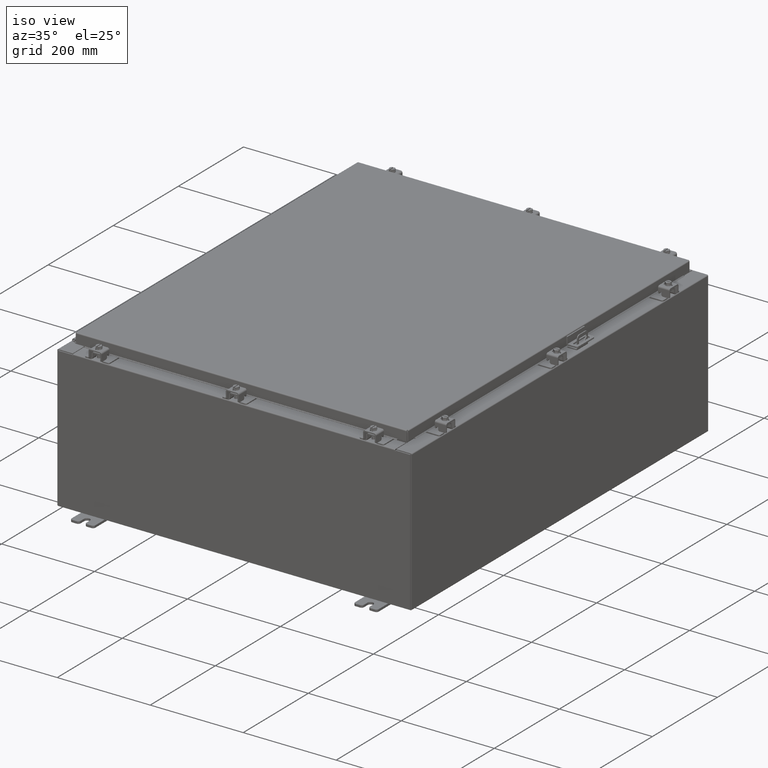
[diagram: clean part render]
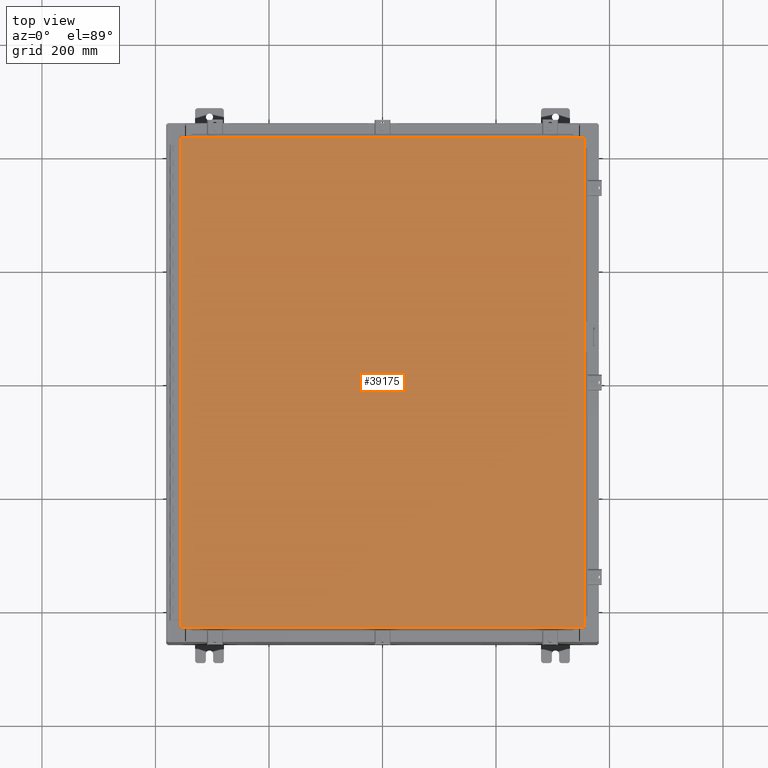
[diagram: tour spotlight — one face highlighted and labeled with its STEP entity id]
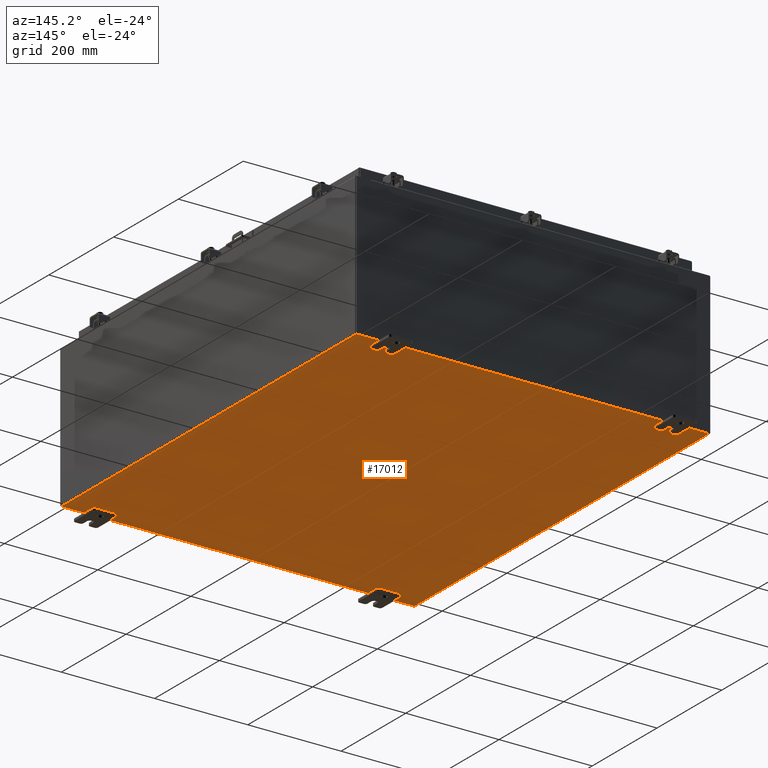
[diagram: tour spotlight — one face highlighted and labeled with its STEP entity id]
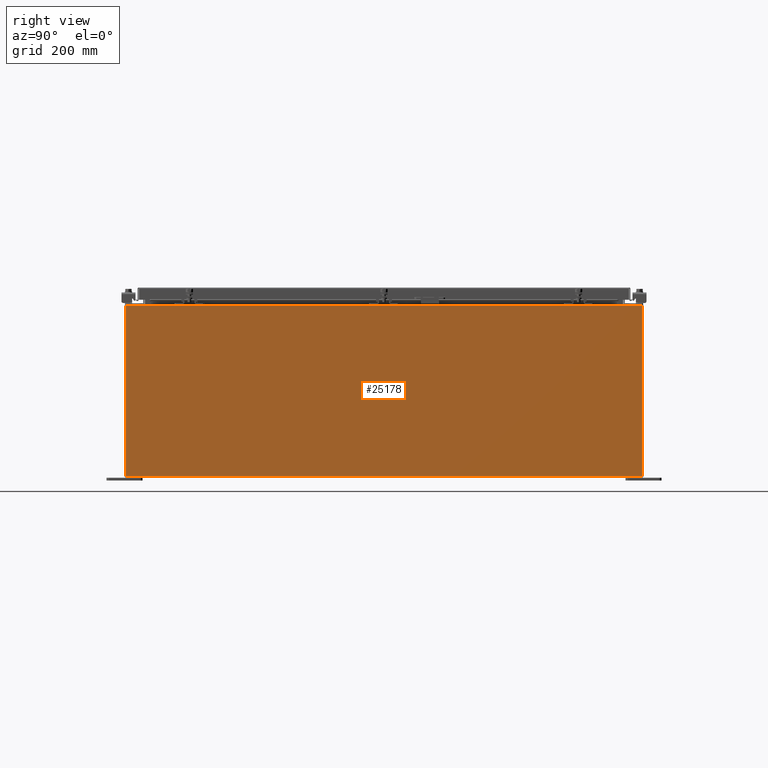
[diagram: tour spotlight — one face highlighted and labeled with its STEP entity id]
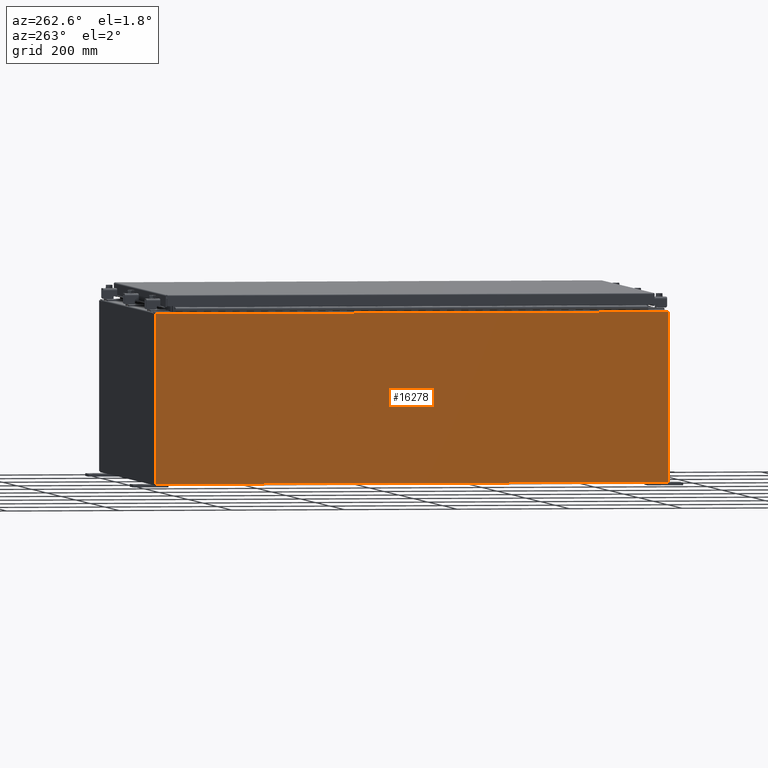
[diagram: tour spotlight — one face highlighted and labeled with its STEP entity id]
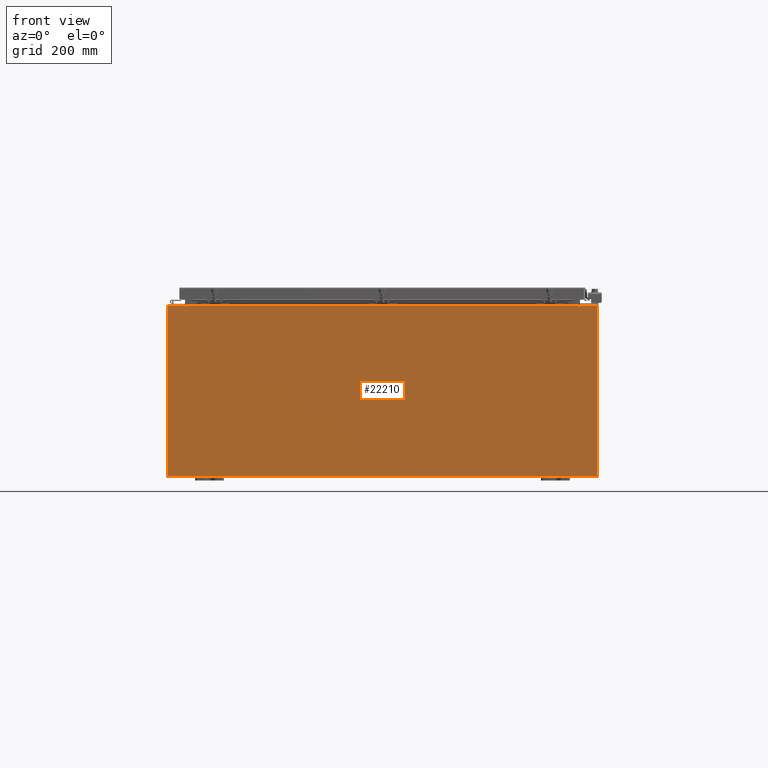
[diagram: tour spotlight — one face highlighted and labeled with its STEP entity id]
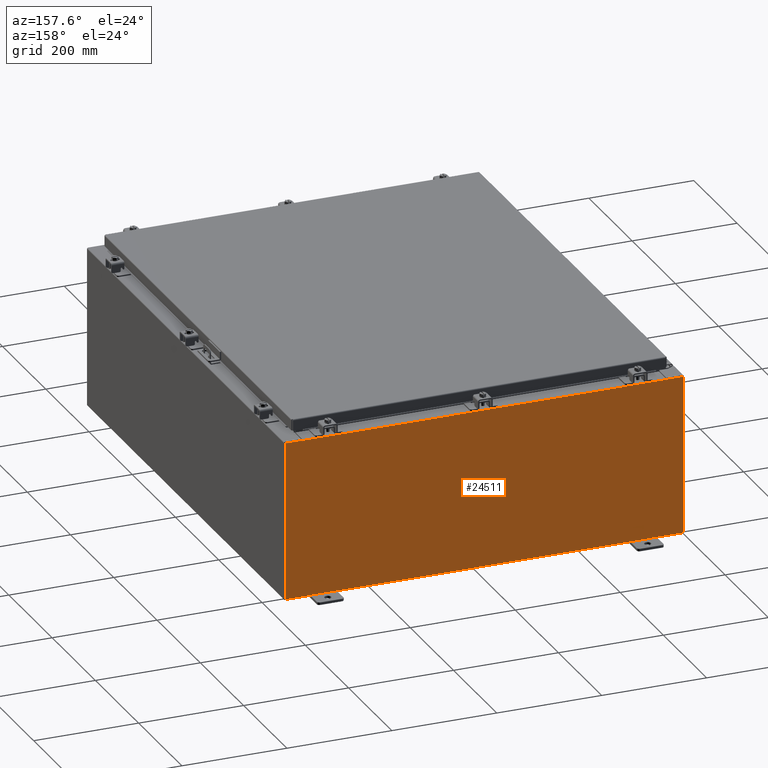
[diagram: tour spotlight — one face highlighted and labeled with its STEP entity id]
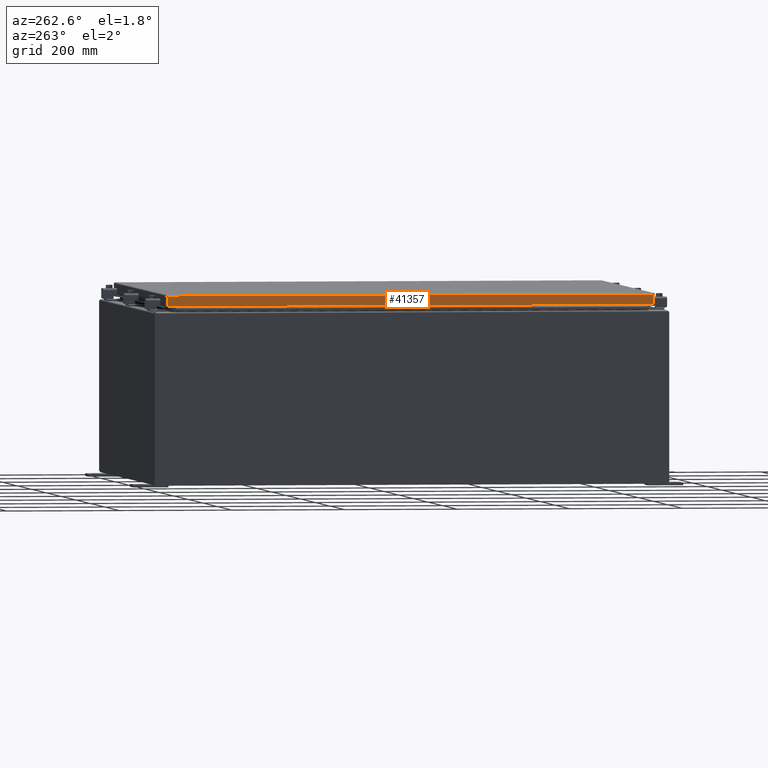
[diagram: tour spotlight — one face highlighted and labeled with its STEP entity id]
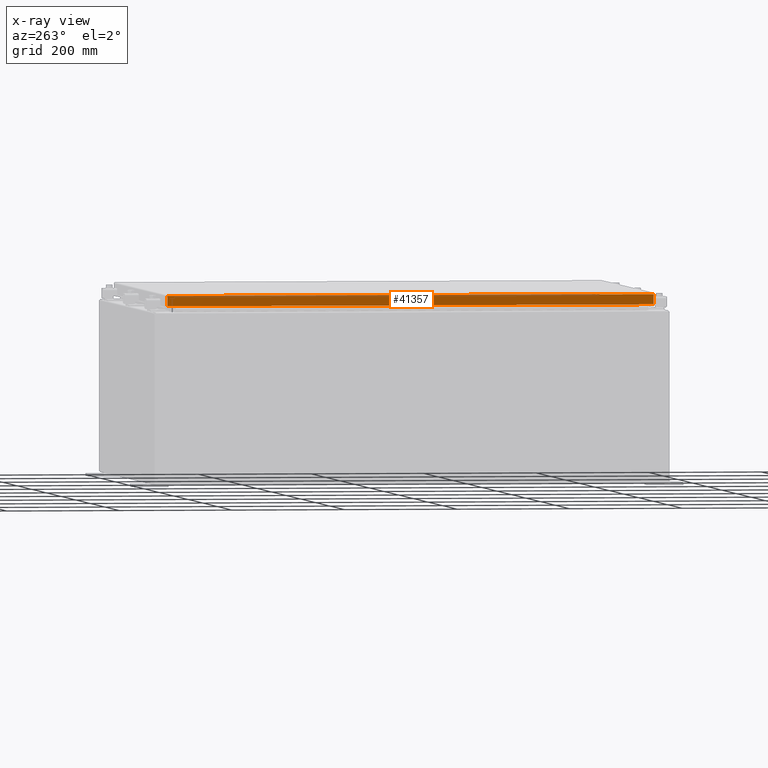
[diagram: x-ray of the same camera — body ghosted, this tour face saturated]
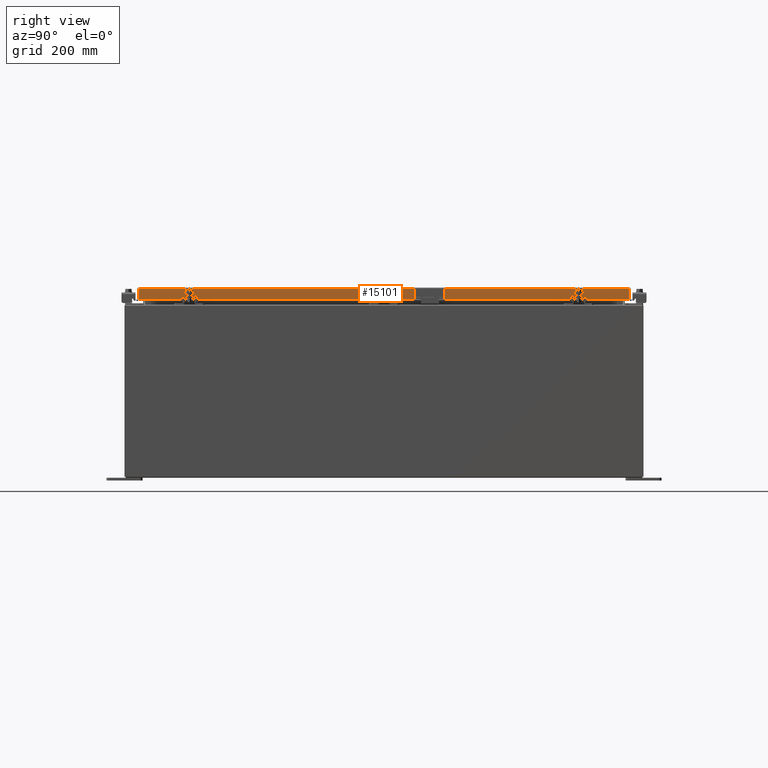
[diagram: tour spotlight — one face highlighted and labeled with its STEP entity id]
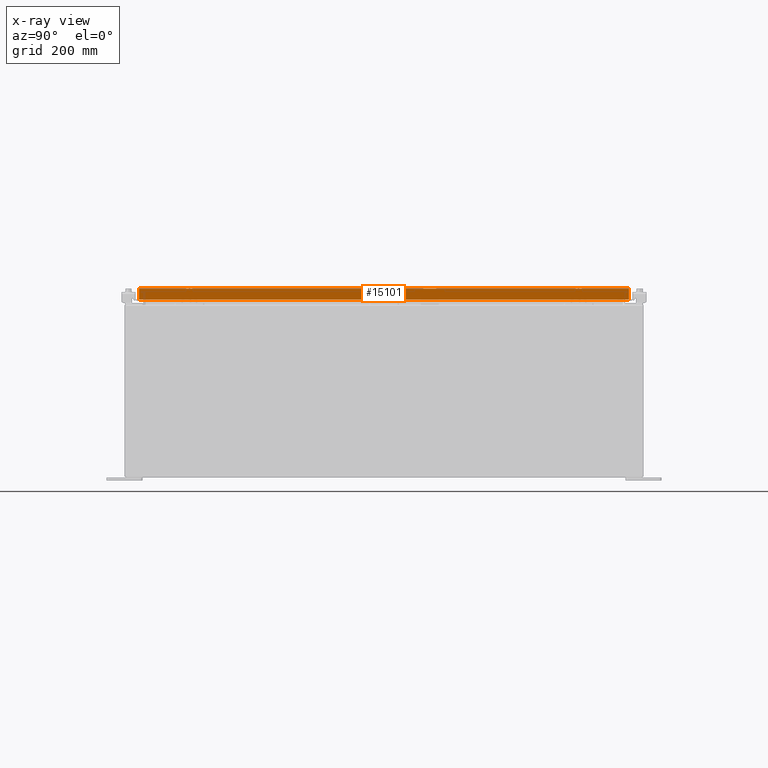
[diagram: x-ray of the same camera — body ghosted, this tour face saturated]
A machine part: a face-by-face anatomy tour. The part has 2456 B-rep faces; the first image is the clean iso view, then the 8 largest visible faces are spotlighted one at a time (largest first), each with its STEP entity span.

Face 1 — top view, entity #39175. In plain terms, the highlighted planar face has unit normal (0, 0, -1).
Definition (entity closure, byte-faithful):
#191 = ORIENTED_EDGE ( 'NONE', *, *, #33619, .T. ) ;
#309 = ORIENTED_EDGE ( 'NONE', *, *, #18779, .T. ) ;
#996 = CARTESIAN_POINT ( 'NONE',  ( 13.99029999999999200, 17.00630000000000300, -1.297627796990525000E-015 ) ) ;
#1661 = EDGE_CURVE ( 'NONE', #9307, #8227, #2307, .T. ) ;
#2194 = DIRECTION ( 'NONE',  ( 0.0000000000000000000, -1.000000000000000000, 0.0000000000000000000 ) ) ;
#2307 = LINE ( 'NONE', #35339, #27829 ) ;
#4117 = CARTESIAN_POINT ( 'NONE',  ( -13.99030000000000700, -17.00630000000000000, -2.048885995248197400E-016 ) ) ;
#5001 = PLANE ( 'NONE',  #30176 ) ;
#5248 = VERTEX_POINT ( 'NONE', #32725 ) ;
#5405 = DIRECTION ( 'NONE',  ( 1.000000000000000000, -0.0000000000000000000, -0.0000000000000000000 ) ) ;
#8227 = VERTEX_POINT ( 'NONE', #20171 ) ;
#9307 = VERTEX_POINT ( 'NONE', #4117 ) ;
#9902 = ORIENTED_EDGE ( 'NONE', *, *, #30207, .T. ) ;
#14158 = CARTESIAN_POINT ( 'NONE',  ( 13.99029999999999200, -17.00630000000000000, -2.048885995248197400E-016 ) ) ;
#15051 = DIRECTION ( 'NONE',  ( 0.0000000000000000000, 0.0000000000000000000, -1.000000000000000000 ) ) ;
#17682 = LINE ( 'NONE', #42198, #25524 ) ;
#18779 = EDGE_CURVE ( 'NONE', #18834, #5248, #24235, .T. ) ;
#18834 = VERTEX_POINT ( 'NONE', #996 ) ;
#20171 = CARTESIAN_POINT ( 'NONE',  ( 13.99029999999999200, -17.00630000000000000, -2.048885995248197400E-016 ) ) ;
#20791 = EDGE_LOOP ( 'NONE', ( #23400, #9902, #309, #191 ) ) ;
#22621 = FACE_OUTER_BOUND ( 'NONE', #20791, .T. ) ;
#23400 = ORIENTED_EDGE ( 'NONE', *, *, #1661, .T. ) ;
#24235 = LINE ( 'NONE', #27099, #40952 ) ;
#25524 = VECTOR ( 'NONE', #2194, 39.37007874015748100 ) ;
#27099 = CARTESIAN_POINT ( 'NONE',  ( 13.99029999999999200, 17.00630000000000300, -1.297627796990525000E-015 ) ) ;
#27829 = VECTOR ( 'NONE', #5405, 39.37007874015748100 ) ;
#30176 = AXIS2_PLACEMENT_3D ( 'NONE', #31694, #15051, #38436 ) ;
#30207 = EDGE_CURVE ( 'NONE', #8227, #18834, #33132, .T. ) ;
#31694 = CARTESIAN_POINT ( 'NONE',  ( 0.0000000000000000000, 0.0000000000000000000, 0.0000000000000000000 ) ) ;
#32725 = CARTESIAN_POINT ( 'NONE',  ( -13.99030000000000700, 17.00630000000000000, -2.048885995248197400E-016 ) ) ;
#33132 = LINE ( 'NONE', #14158, #41016 ) ;
#33619 = EDGE_CURVE ( 'NONE', #5248, #9307, #17682, .T. ) ;
#35339 = CARTESIAN_POINT ( 'NONE',  ( -13.99030000000000700, -17.00630000000000000, -2.048885995248197400E-016 ) ) ;
#38436 = DIRECTION ( 'NONE',  ( -1.000000000000000000, 0.0000000000000000000, -0.0000000000000000000 ) ) ;
#39175 = ADVANCED_FACE ( 'NONE', ( #22621 ), #5001, .F. ) ;
#40140 = DIRECTION ( 'NONE',  ( -1.000000000000000000, -0.0000000000000000000, -0.0000000000000000000 ) ) ;
#40893 = DIRECTION ( 'NONE',  ( 0.0000000000000000000, 1.000000000000000000, 0.0000000000000000000 ) ) ;
#40952 = VECTOR ( 'NONE', #40140, 39.37007874015748100 ) ;
#41016 = VECTOR ( 'NONE', #40893, 39.37007874015748100 ) ;
#42198 = CARTESIAN_POINT ( 'NONE',  ( -13.99030000000000700, 17.00630000000000000, -2.048885995248197400E-016 ) ) ;

Face 2 — auxiliary view, entity #17012. In plain terms, the highlighted planar face has unit normal (0, 0, -1).
Definition (entity closure, byte-faithful):
#539 = LINE ( 'NONE', #2474, #34940 ) ;
#789 = CARTESIAN_POINT ( 'NONE',  ( -14.91230000000000200, -17.92530000000000000, -0.07469999999999994700 ) ) ;
#812 = CARTESIAN_POINT ( 'NONE',  ( -14.91230000000000200, 17.92530000000000000, -0.07470000000000000300 ) ) ;
#1270 = VECTOR ( 'NONE', #16468, 39.37007874015748100 ) ;
#1309 = PLANE ( 'NONE',  #15820 ) ;
#2086 = CARTESIAN_POINT ( 'NONE',  ( 14.91229999999999800, 17.92530000000000000, -0.07470000000000251400 ) ) ;
#2474 = CARTESIAN_POINT ( 'NONE',  ( -15.00000000000000400, 17.92530000000000000, -0.07470000000000000300 ) ) ;
#2771 = ORIENTED_EDGE ( 'NONE', *, *, #39506, .T. ) ;
#3718 = LINE ( 'NONE', #789, #37130 ) ;
#5059 = DIRECTION ( 'NONE',  ( 1.000000000000000000, 0.0000000000000000000, 0.0000000000000000000 ) ) ;
#6262 = ORIENTED_EDGE ( 'NONE', *, *, #21715, .T. ) ;
#10648 = CARTESIAN_POINT ( 'NONE',  ( -14.91230000000000200, -17.92530000000000000, -0.07469999999999994700 ) ) ;
#11982 = VECTOR ( 'NONE', #5059, 39.37007874015748100 ) ;
#15621 = EDGE_CURVE ( 'NONE', #15990, #28274, #539, .T. ) ;
#15704 = ORIENTED_EDGE ( 'NONE', *, *, #33000, .F. ) ;
#15820 = AXIS2_PLACEMENT_3D ( 'NONE', #32614, #40385, #41700 ) ;
#15990 = VERTEX_POINT ( 'NONE', #2086 ) ;
#16468 = DIRECTION ( 'NONE',  ( -0.0000000000000000000, -1.000000000000000000, 8.208677865577646300E-017 ) ) ;
#17012 = ADVANCED_FACE ( 'NONE', ( #21281 ), #1309, .T. ) ;
#20755 = VERTEX_POINT ( 'NONE', #37196 ) ;
#21270 = ORIENTED_EDGE ( 'NONE', *, *, #15621, .F. ) ;
#21281 = FACE_OUTER_BOUND ( 'NONE', #25036, .T. ) ;
#21715 = EDGE_CURVE ( 'NONE', #15990, #20755, #28877, .T. ) ;
#23963 = CARTESIAN_POINT ( 'NONE',  ( 14.91229999999999800, 17.92530000000000000, -0.07470000000000251400 ) ) ;
#25036 = EDGE_LOOP ( 'NONE', ( #15704, #2771, #21270, #6262 ) ) ;
#27423 = DIRECTION ( 'NONE',  ( -0.0000000000000000000, 1.000000000000000000, -0.0000000000000000000 ) ) ;
#27600 = DIRECTION ( 'NONE',  ( -1.000000000000000000, -0.0000000000000000000, -0.0000000000000000000 ) ) ;
#28274 = VERTEX_POINT ( 'NONE', #812 ) ;
#28387 = VERTEX_POINT ( 'NONE', #10648 ) ;
#28877 = LINE ( 'NONE', #23963, #1270 ) ;
#31598 = CARTESIAN_POINT ( 'NONE',  ( -15.00000000000000400, -17.92530000000000000, -0.07470000000000000300 ) ) ;
#32614 = CARTESIAN_POINT ( 'NONE',  ( 0.0000000000000000000, 0.0000000000000000000, -0.07470000000000000300 ) ) ;
#33000 = EDGE_CURVE ( 'NONE', #28387, #20755, #38673, .T. ) ;
#34940 = VECTOR ( 'NONE', #27600, 39.37007874015748100 ) ;
#37130 = VECTOR ( 'NONE', #27423, 39.37007874015748100 ) ;
#37196 = CARTESIAN_POINT ( 'NONE',  ( 14.91229999999999800, -17.92530000000000000, -0.07470000000000000300 ) ) ;
#38673 = LINE ( 'NONE', #31598, #11982 ) ;
#39506 = EDGE_CURVE ( 'NONE', #28387, #28274, #3718, .T. ) ;
#40385 = DIRECTION ( 'NONE',  ( 0.0000000000000000000, 0.0000000000000000000, -1.000000000000000000 ) ) ;
#41700 = DIRECTION ( 'NONE',  ( -1.000000000000000000, 0.0000000000000000000, -0.0000000000000000000 ) ) ;

Face 3 — right view, entity #25178. In plain terms, the highlighted planar face has unit normal (-1, 0, 0).
Definition (entity closure, byte-faithful):
#2097 = DIRECTION ( 'NONE',  ( 3.482016343714355500E-015, -1.832640180902292400E-016, 1.000000000000000000 ) ) ;
#4317 = DIRECTION ( 'NONE',  ( 3.482016343714355100E-015, 0.0000000000000000000, 1.000000000000000000 ) ) ;
#4498 = DIRECTION ( 'NONE',  ( -1.000000000000000000, 0.0000000000000000000, 3.482016343714355100E-015 ) ) ;
#5615 = LINE ( 'NONE', #33750, #39077 ) ;
#5882 = DIRECTION ( 'NONE',  ( 2.122662239958547800E-031, -1.000000000000000000, 6.096072018129156600E-017 ) ) ;
#7969 = CARTESIAN_POINT ( 'NONE',  ( 15.00000000000004100, 17.92530000000000000, 11.83760000000000000 ) ) ;
#8569 = EDGE_CURVE ( 'NONE', #34806, #18717, #5615, .T. ) ;
#9868 = VECTOR ( 'NONE', #11328, 39.37007874015748100 ) ;
#9876 = LINE ( 'NONE', #42080, #28676 ) ;
#10650 = VECTOR ( 'NONE', #5882, 39.37007874015748100 ) ;
#11328 = DIRECTION ( 'NONE',  ( -0.0000000000000000000, -1.000000000000000000, -0.0000000000000000000 ) ) ;
#13254 = VERTEX_POINT ( 'NONE', #21240 ) ;
#13809 = CARTESIAN_POINT ( 'NONE',  ( 14.99999999999999800, -17.92530000000000000, 0.01299999999999984700 ) ) ;
#14665 = EDGE_CURVE ( 'NONE', #22363, #13254, #9876, .T. ) ;
#14951 = PLANE ( 'NONE',  #26482 ) ;
#15037 = CARTESIAN_POINT ( 'NONE',  ( 15.00000000000004100, -17.92530000000000000, 11.83760000000000000 ) ) ;
#17853 = ORIENTED_EDGE ( 'NONE', *, *, #40330, .T. ) ;
#18717 = VERTEX_POINT ( 'NONE', #41968 ) ;
#21240 = CARTESIAN_POINT ( 'NONE',  ( 15.00000000000004100, 17.92530000000000000, 11.83760000000000000 ) ) ;
#21411 = ORIENTED_EDGE ( 'NONE', *, *, #26162, .F. ) ;
#22363 = VERTEX_POINT ( 'NONE', #41075 ) ;
#22509 = EDGE_LOOP ( 'NONE', ( #17853, #23803, #21411, #22524 ) ) ;
#22524 = ORIENTED_EDGE ( 'NONE', *, *, #14665, .T. ) ;
#23803 = ORIENTED_EDGE ( 'NONE', *, *, #8569, .T. ) ;
#24105 = DIRECTION ( 'NONE',  ( -3.482016343714355500E-015, 0.0000000000000000000, -1.000000000000000000 ) ) ;
#25178 = ADVANCED_FACE ( 'NONE', ( #35277 ), #14951, .F. ) ;
#26162 = EDGE_CURVE ( 'NONE', #22363, #18717, #28362, .T. ) ;
#26482 = AXIS2_PLACEMENT_3D ( 'NONE', #30338, #4498, #4317 ) ;
#28362 = LINE ( 'NONE', #13809, #10650 ) ;
#28676 = VECTOR ( 'NONE', #2097, 39.37007874015748100 ) ;
#30338 = CARTESIAN_POINT ( 'NONE',  ( 14.99999999999999800, 0.0000000000000000000, -5.249105881172690100E-014 ) ) ;
#33750 = CARTESIAN_POINT ( 'NONE',  ( 14.99999999999999800, -17.92530000000000000, -5.249105881172690100E-014 ) ) ;
#34806 = VERTEX_POINT ( 'NONE', #15037 ) ;
#35277 = FACE_OUTER_BOUND ( 'NONE', #22509, .T. ) ;
#36531 = LINE ( 'NONE', #7969, #9868 ) ;
#39077 = VECTOR ( 'NONE', #24105, 39.37007874015748100 ) ;
#40330 = EDGE_CURVE ( 'NONE', #13254, #34806, #36531, .T. ) ;
#41075 = CARTESIAN_POINT ( 'NONE',  ( 14.99999999999999800, 17.92530000000000000, 0.01299999999999766100 ) ) ;
#41968 = CARTESIAN_POINT ( 'NONE',  ( 14.99999999999999800, -17.92530000000000000, 0.01300000000000022700 ) ) ;
#42080 = CARTESIAN_POINT ( 'NONE',  ( 14.99999999999999800, 17.92530000000000000, -4.920599630825411400E-014 ) ) ;

Face 4 — auxiliary view, entity #16278. In plain terms, the highlighted planar face has unit normal (1, 0, 0).
Definition (entity closure, byte-faithful):
#455 = VERTEX_POINT ( 'NONE', #22631 ) ;
#2026 = FACE_OUTER_BOUND ( 'NONE', #41915, .T. ) ;
#3519 = CARTESIAN_POINT ( 'NONE',  ( -15.00000000000000400, -17.92530000000000000, 0.01299999999999984700 ) ) ;
#4896 = ORIENTED_EDGE ( 'NONE', *, *, #12250, .T. ) ;
#8318 = DIRECTION ( 'NONE',  ( 3.482016343714355500E-015, 0.0000000000000000000, -1.000000000000000000 ) ) ;
#9020 = LINE ( 'NONE', #42039, #42537 ) ;
#9219 = CARTESIAN_POINT ( 'NONE',  ( -15.00000000000004400, 17.92530000000000000, 11.83760000000000000 ) ) ;
#9431 = DIRECTION ( 'NONE',  ( 1.000000000000000000, 0.0000000000000000000, 3.482016343714355100E-015 ) ) ;
#9759 = VERTEX_POINT ( 'NONE', #9219 ) ;
#9795 = PLANE ( 'NONE',  #40743 ) ;
#11102 = VECTOR ( 'NONE', #8318, 39.37007874015748100 ) ;
#12250 = EDGE_CURVE ( 'NONE', #9759, #32150, #36706, .T. ) ;
#14410 = VERTEX_POINT ( 'NONE', #3519 ) ;
#16278 = ADVANCED_FACE ( 'NONE', ( #2026 ), #9795, .F. ) ;
#16317 = EDGE_CURVE ( 'NONE', #14410, #32150, #35416, .T. ) ;
#17445 = ORIENTED_EDGE ( 'NONE', *, *, #16317, .F. ) ;
#18669 = DIRECTION ( 'NONE',  ( -3.482016343714355500E-015, 0.0000000000000000000, 1.000000000000000000 ) ) ;
#22631 = CARTESIAN_POINT ( 'NONE',  ( -15.00000000000004400, -17.92530000000000000, 11.83760000000000000 ) ) ;
#22830 = CARTESIAN_POINT ( 'NONE',  ( -15.00000000000004400, -17.92530000000000000, 11.83760000000000000 ) ) ;
#24960 = CARTESIAN_POINT ( 'NONE',  ( -15.00000000000000400, 17.92530000000000000, -5.249105881172692000E-014 ) ) ;
#25171 = ORIENTED_EDGE ( 'NONE', *, *, #29238, .T. ) ;
#25311 = ORIENTED_EDGE ( 'NONE', *, *, #28629, .T. ) ;
#25813 = CARTESIAN_POINT ( 'NONE',  ( -15.00000000000000400, 0.0000000000000000000, -5.249105881172692000E-014 ) ) ;
#26518 = VECTOR ( 'NONE', #35030, 39.37007874015748100 ) ;
#27284 = VECTOR ( 'NONE', #42869, 39.37007874015748100 ) ;
#28629 = EDGE_CURVE ( 'NONE', #14410, #455, #9020, .T. ) ;
#29238 = EDGE_CURVE ( 'NONE', #455, #9759, #36187, .T. ) ;
#31947 = DIRECTION ( 'NONE',  ( 3.482016343714355100E-015, 0.0000000000000000000, -1.000000000000000000 ) ) ;
#32150 = VERTEX_POINT ( 'NONE', #39734 ) ;
#34438 = CARTESIAN_POINT ( 'NONE',  ( -15.00000000000000400, 17.92530000000000000, 0.01299999999999984700 ) ) ;
#35030 = DIRECTION ( 'NONE',  ( -0.0000000000000000000, 1.000000000000000000, -0.0000000000000000000 ) ) ;
#35416 = LINE ( 'NONE', #34438, #26518 ) ;
#36187 = LINE ( 'NONE', #22830, #27284 ) ;
#36706 = LINE ( 'NONE', #24960, #11102 ) ;
#39734 = CARTESIAN_POINT ( 'NONE',  ( -15.00000000000000400, 17.92530000000000000, 0.01299999999999984700 ) ) ;
#40743 = AXIS2_PLACEMENT_3D ( 'NONE', #25813, #9431, #31947 ) ;
#41915 = EDGE_LOOP ( 'NONE', ( #25171, #4896, #17445, #25311 ) ) ;
#42039 = CARTESIAN_POINT ( 'NONE',  ( -15.00000000000000400, -17.92530000000000000, -5.249105881172692000E-014 ) ) ;
#42537 = VECTOR ( 'NONE', #18669, 39.37007874015748100 ) ;
#42869 = DIRECTION ( 'NONE',  ( 0.0000000000000000000, 1.000000000000000000, 0.0000000000000000000 ) ) ;

Face 5 — front view, entity #22210. In plain terms, the highlighted planar face has unit normal (-0, 1, -0).
Definition (entity closure, byte-faithful):
#1149 = LINE ( 'NONE', #11876, #26666 ) ;
#2138 = CARTESIAN_POINT ( 'NONE',  ( 13.67454999999974600, -0.0000000000000000000, -5.935537951421777900E-013 ) ) ;
#2646 = AXIS2_PLACEMENT_3D ( 'NONE', #6931, #30259, #10310 ) ;
#2667 = VECTOR ( 'NONE', #17802, 39.37007874015748100 ) ;
#2772 = CARTESIAN_POINT ( 'NONE',  ( 0.0000000000000000000, 0.0000000000000000000, 0.0000000000000000000 ) ) ;
#2865 = CARTESIAN_POINT ( 'NONE',  ( 13.63720000000000400, 0.0000000000000000000, 5.912299999999999200 ) ) ;
#3139 = EDGE_CURVE ( 'NONE', #18209, #20003, #14162, .T. ) ;
#4864 = EDGE_CURVE ( 'NONE', #8662, #29314, #9369, .T. ) ;
#5684 = VERTEX_POINT ( 'NONE', #21584 ) ;
#5862 = CARTESIAN_POINT ( 'NONE',  ( -13.63719999999999800, 3.756290991288361700E-016, 5.912299999999999200 ) ) ;
#5922 = CARTESIAN_POINT ( 'NONE',  ( -14.92529999999999800, 0.0000000000000000000, 5.925299999999999100 ) ) ;
#6156 = CARTESIAN_POINT ( 'NONE',  ( -14.92529999999999800, 0.0000000000000000000, 5.925299999999999100 ) ) ;
#6422 = EDGE_CURVE ( 'NONE', #35802, #12607, #1149, .T. ) ;
#6931 = CARTESIAN_POINT ( 'NONE',  ( -13.65587499999999600, 0.0000000000000000000, 5.874949999999999200 ) ) ;
#7338 = VECTOR ( 'NONE', #36606, 39.37007874015748100 ) ;
#7958 = ORIENTED_EDGE ( 'NONE', *, *, #17823, .T. ) ;
#8072 = ORIENTED_EDGE ( 'NONE', *, *, #4864, .F. ) ;
#8499 = VECTOR ( 'NONE', #35872, 39.37007874015748100 ) ;
#8616 = DIRECTION ( 'NONE',  ( 0.0000000000000000000, 0.0000000000000000000, -1.000000000000000000 ) ) ;
#8662 = VERTEX_POINT ( 'NONE', #37261 ) ;
#9369 = CIRCLE ( 'NONE', #38859, 0.01867499999999949400 ) ;
#10310 = DIRECTION ( 'NONE',  ( 0.0000000000000000000, 0.0000000000000000000, -1.000000000000000000 ) ) ;
#10738 = VECTOR ( 'NONE', #42498, 39.37007874015748100 ) ;
#10843 = CARTESIAN_POINT ( 'NONE',  ( -13.67454999999999500, 0.0000000000000000000, 5.874949999999999200 ) ) ;
#10991 = EDGE_LOOP ( 'NONE', ( #18855, #37241, #13646, #7958, #25420, #8072, #34716, #21332, #18185, #32937, #36716, #13930 ) ) ;
#11079 = EDGE_CURVE ( 'NONE', #18209, #8662, #35232, .T. ) ;
#11876 = CARTESIAN_POINT ( 'NONE',  ( -13.67454999999999500, -0.0000000000000000000, 0.0000000000000000000 ) ) ;
#11885 = PLANE ( 'NONE',  #12401 ) ;
#12401 = AXIS2_PLACEMENT_3D ( 'NONE', #2772, #28148, #38661 ) ;
#12501 = DIRECTION ( 'NONE',  ( 0.0000000000000000000, 0.0000000000000000000, 1.000000000000000000 ) ) ;
#12607 = VERTEX_POINT ( 'NONE', #40080 ) ;
#12929 = VERTEX_POINT ( 'NONE', #2865 ) ;
#13370 = VERTEX_POINT ( 'NONE', #23498 ) ;
#13646 = ORIENTED_EDGE ( 'NONE', *, *, #14036, .F. ) ;
#13930 = ORIENTED_EDGE ( 'NONE', *, *, #38906, .T. ) ;
#14036 = EDGE_CURVE ( 'NONE', #5684, #18478, #16220, .T. ) ;
#14162 = LINE ( 'NONE', #41836, #30865 ) ;
#14260 = LINE ( 'NONE', #5922, #8499 ) ;
#15337 = CARTESIAN_POINT ( 'NONE',  ( -14.92529999999999800, 0.0000000000000000000, -5.925300000000001800 ) ) ;
#16220 = LINE ( 'NONE', #33924, #7338 ) ;
#17802 = DIRECTION ( 'NONE',  ( 0.0000000000000000000, 0.0000000000000000000, -1.000000000000000000 ) ) ;
#17823 = EDGE_CURVE ( 'NONE', #5684, #12929, #19617, .T. ) ;
#18087 = VECTOR ( 'NONE', #18510, 39.37007874015748100 ) ;
#18185 = ORIENTED_EDGE ( 'NONE', *, *, #39598, .T. ) ;
#18209 = VERTEX_POINT ( 'NONE', #34574 ) ;
#18478 = VERTEX_POINT ( 'NONE', #29311 ) ;
#18510 = DIRECTION ( 'NONE',  ( 0.0000000000000000000, 0.0000000000000000000, 1.000000000000000000 ) ) ;
#18855 = ORIENTED_EDGE ( 'NONE', *, *, #6422, .F. ) ;
#19549 = CARTESIAN_POINT ( 'NONE',  ( 14.92530000000000200, 0.0000000000000000000, 5.925299999999999100 ) ) ;
#19617 = LINE ( 'NONE', #5862, #10738 ) ;
#20003 = VERTEX_POINT ( 'NONE', #19549 ) ;
#21332 = ORIENTED_EDGE ( 'NONE', *, *, #3139, .T. ) ;
#21584 = CARTESIAN_POINT ( 'NONE',  ( -13.63719999999999600, 3.756290991288361700E-016, 5.912299999999999200 ) ) ;
#22210 = ADVANCED_FACE ( 'NONE', ( #41420 ), #11885, .F. ) ;
#22660 = VECTOR ( 'NONE', #25438, 39.37007874015748100 ) ;
#23419 = CARTESIAN_POINT ( 'NONE',  ( 13.63720000000000400, 0.0000000000000000000, 5.874949999999999200 ) ) ;
#23498 = CARTESIAN_POINT ( 'NONE',  ( -14.92529999999999800, 0.0000000000000000000, -5.925300000000001800 ) ) ;
#23914 = DIRECTION ( 'NONE',  ( -0.0000000000000000000, -0.0000000000000000000, 1.000000000000000000 ) ) ;
#24307 = LINE ( 'NONE', #6156, #26377 ) ;
#25157 = DIRECTION ( 'NONE',  ( -4.340572780400004900E-014, 0.0000000000000000000, -1.000000000000000000 ) ) ;
#25226 = EDGE_CURVE ( 'NONE', #13370, #32574, #24307, .T. ) ;
#25420 = ORIENTED_EDGE ( 'NONE', *, *, #42005, .F. ) ;
#25438 = DIRECTION ( 'NONE',  ( -1.000000000000000000, -0.0000000000000000000, -0.0000000000000000000 ) ) ;
#25465 = CARTESIAN_POINT ( 'NONE',  ( 14.92530000000000200, 0.0000000000000000000, -5.925300000000001800 ) ) ;
#26120 = LINE ( 'NONE', #37821, #2667 ) ;
#26335 = VECTOR ( 'NONE', #25157, 39.37007874015748100 ) ;
#26377 = VECTOR ( 'NONE', #23914, 39.37007874015748100 ) ;
#26666 = VECTOR ( 'NONE', #12501, 39.37007874015748100 ) ;
#26959 = LINE ( 'NONE', #28406, #18087 ) ;
#27340 = DIRECTION ( 'NONE',  ( 1.000000000000000000, 0.0000000000000000000, 0.0000000000000000000 ) ) ;
#28148 = DIRECTION ( 'NONE',  ( 0.0000000000000000000, -1.000000000000000000, 0.0000000000000000000 ) ) ;
#28406 = CARTESIAN_POINT ( 'NONE',  ( 13.63720000000000400, 0.0000000000000000000, 0.0000000000000000000 ) ) ;
#28628 = DIRECTION ( 'NONE',  ( -0.0000000000000000000, 1.000000000000000000, -0.0000000000000000000 ) ) ;
#29311 = CARTESIAN_POINT ( 'NONE',  ( -13.63719999999999600, -0.0000000000000000000, 5.874949999999999200 ) ) ;
#29314 = VERTEX_POINT ( 'NONE', #23419 ) ;
#29542 = EDGE_CURVE ( 'NONE', #18478, #35802, #35632, .T. ) ;
#30259 = DIRECTION ( 'NONE',  ( -0.0000000000000000000, 1.000000000000000000, -0.0000000000000000000 ) ) ;
#30865 = VECTOR ( 'NONE', #27340, 39.37007874015748100 ) ;
#30874 = EDGE_CURVE ( 'NONE', #37561, #13370, #31515, .T. ) ;
#31515 = LINE ( 'NONE', #15337, #22660 ) ;
#32574 = VERTEX_POINT ( 'NONE', #38816 ) ;
#32937 = ORIENTED_EDGE ( 'NONE', *, *, #30874, .T. ) ;
#33924 = CARTESIAN_POINT ( 'NONE',  ( -13.63719999999999600, -0.0000000000000000000, 0.0000000000000000000 ) ) ;
#34574 = CARTESIAN_POINT ( 'NONE',  ( 13.67455000000000400, 0.0000000000000000000, 5.925299999999999100 ) ) ;
#34716 = ORIENTED_EDGE ( 'NONE', *, *, #11079, .F. ) ;
#35232 = LINE ( 'NONE', #2138, #26335 ) ;
#35632 = CIRCLE ( 'NONE', #2646, 0.01867499999999949400 ) ;
#35802 = VERTEX_POINT ( 'NONE', #10843 ) ;
#35872 = DIRECTION ( 'NONE',  ( 1.000000000000000000, 0.0000000000000000000, 0.0000000000000000000 ) ) ;
#36606 = DIRECTION ( 'NONE',  ( 0.0000000000000000000, 0.0000000000000000000, -1.000000000000000000 ) ) ;
#36716 = ORIENTED_EDGE ( 'NONE', *, *, #25226, .T. ) ;
#37241 = ORIENTED_EDGE ( 'NONE', *, *, #29542, .F. ) ;
#37261 = CARTESIAN_POINT ( 'NONE',  ( 13.67455000000000200, 0.0000000000000000000, 5.874949999999999200 ) ) ;
#37561 = VERTEX_POINT ( 'NONE', #25465 ) ;
#37821 = CARTESIAN_POINT ( 'NONE',  ( 14.92530000000000200, 0.0000000000000000000, 5.925299999999999100 ) ) ;
#38661 = DIRECTION ( 'NONE',  ( 0.0000000000000000000, -0.0000000000000000000, -1.000000000000000000 ) ) ;
#38816 = CARTESIAN_POINT ( 'NONE',  ( -14.92529999999999800, 0.0000000000000000000, 5.925299999999999100 ) ) ;
#38859 = AXIS2_PLACEMENT_3D ( 'NONE', #42112, #28628, #8616 ) ;
#38906 = EDGE_CURVE ( 'NONE', #32574, #12607, #14260, .T. ) ;
#39598 = EDGE_CURVE ( 'NONE', #20003, #37561, #26120, .T. ) ;
#40080 = CARTESIAN_POINT ( 'NONE',  ( -13.67454999999999500, 0.0000000000000000000, 5.925299999999999100 ) ) ;
#41420 = FACE_OUTER_BOUND ( 'NONE', #10991, .T. ) ;
#41836 = CARTESIAN_POINT ( 'NONE',  ( -14.92529999999999800, 0.0000000000000000000, 5.925299999999999100 ) ) ;
#42005 = EDGE_CURVE ( 'NONE', #29314, #12929, #26959, .T. ) ;
#42112 = CARTESIAN_POINT ( 'NONE',  ( 13.65587500000000200, 0.0000000000000000000, 5.874949999999999200 ) ) ;
#42498 = DIRECTION ( 'NONE',  ( 1.000000000000000000, 0.0000000000000000000, 0.0000000000000000000 ) ) ;

Face 6 — auxiliary view, entity #24511. In plain terms, the highlighted planar face has unit normal (0, -1, 0).
Definition (entity closure, byte-faithful):
#885 = LINE ( 'NONE', #32275, #17523 ) ;
#1396 = LINE ( 'NONE', #13780, #7085 ) ;
#1852 = LINE ( 'NONE', #19306, #29466 ) ;
#2101 = ORIENTED_EDGE ( 'NONE', *, *, #25007, .T. ) ;
#2182 = AXIS2_PLACEMENT_3D ( 'NONE', #5825, #9148, #42367 ) ;
#2277 = EDGE_CURVE ( 'NONE', #12826, #12657, #25717, .T. ) ;
#2312 = ORIENTED_EDGE ( 'NONE', *, *, #29565, .F. ) ;
#2419 = LINE ( 'NONE', #17448, #9126 ) ;
#2438 = ORIENTED_EDGE ( 'NONE', *, *, #32258, .F. ) ;
#2669 = VERTEX_POINT ( 'NONE', #29395 ) ;
#3170 = CARTESIAN_POINT ( 'NONE',  ( 13.63720000000000400, 0.0000000000000000000, 5.874949999999999200 ) ) ;
#5521 = EDGE_CURVE ( 'NONE', #2669, #34655, #39677, .T. ) ;
#5613 = CARTESIAN_POINT ( 'NONE',  ( -13.67454999999999500, 0.0000000000000000000, 5.874949999999999200 ) ) ;
#5776 = AXIS2_PLACEMENT_3D ( 'NONE', #19605, #12432, #33136 ) ;
#5825 = CARTESIAN_POINT ( 'NONE',  ( 13.65587500000000200, 0.0000000000000000000, 5.874949999999999200 ) ) ;
#6003 = VERTEX_POINT ( 'NONE', #15956 ) ;
#6339 = CARTESIAN_POINT ( 'NONE',  ( 14.92530000000000200, 0.0000000000000000000, 5.925299999999999100 ) ) ;
#6382 = DIRECTION ( 'NONE',  ( 1.000000000000000000, 0.0000000000000000000, 0.0000000000000000000 ) ) ;
#6807 = CARTESIAN_POINT ( 'NONE',  ( -13.63719999999999600, -0.0000000000000000000, 0.0000000000000000000 ) ) ;
#7084 = AXIS2_PLACEMENT_3D ( 'NONE', #10437, #33776, #13777 ) ;
#7085 = VECTOR ( 'NONE', #7583, 39.37007874015748100 ) ;
#7583 = DIRECTION ( 'NONE',  ( 1.000000000000000000, 0.0000000000000000000, 0.0000000000000000000 ) ) ;
#7979 = VERTEX_POINT ( 'NONE', #31696 ) ;
#8894 = DIRECTION ( 'NONE',  ( 0.0000000000000000000, 0.0000000000000000000, -1.000000000000000000 ) ) ;
#9126 = VECTOR ( 'NONE', #37492, 39.37007874015748100 ) ;
#9148 = DIRECTION ( 'NONE',  ( -0.0000000000000000000, 1.000000000000000000, -0.0000000000000000000 ) ) ;
#10042 = VERTEX_POINT ( 'NONE', #17673 ) ;
#10155 = DIRECTION ( 'NONE',  ( 0.0000000000000000000, 0.0000000000000000000, -1.000000000000000000 ) ) ;
#10368 = CARTESIAN_POINT ( 'NONE',  ( -13.67454999999999500, -0.0000000000000000000, 0.0000000000000000000 ) ) ;
#10437 = CARTESIAN_POINT ( 'NONE',  ( -13.65587499999999600, 0.0000000000000000000, 5.874949999999999200 ) ) ;
#10923 = VERTEX_POINT ( 'NONE', #21268 ) ;
#12116 = VECTOR ( 'NONE', #37089, 39.37007874015748100 ) ;
#12432 = DIRECTION ( 'NONE',  ( 0.0000000000000000000, -1.000000000000000000, 0.0000000000000000000 ) ) ;
#12657 = VERTEX_POINT ( 'NONE', #3170 ) ;
#12770 = CARTESIAN_POINT ( 'NONE',  ( -13.63719999999999800, 3.756290991288361700E-016, 5.912299999999999200 ) ) ;
#12826 = VERTEX_POINT ( 'NONE', #29102 ) ;
#12941 = ORIENTED_EDGE ( 'NONE', *, *, #25640, .T. ) ;
#12962 = VERTEX_POINT ( 'NONE', #6339 ) ;
#12979 = LINE ( 'NONE', #25073, #19809 ) ;
#13149 = PLANE ( 'NONE',  #5776 ) ;
#13777 = DIRECTION ( 'NONE',  ( 0.0000000000000000000, 0.0000000000000000000, -1.000000000000000000 ) ) ;
#13780 = CARTESIAN_POINT ( 'NONE',  ( -14.92529999999999800, 0.0000000000000000000, 5.925299999999999100 ) ) ;
#13896 = CIRCLE ( 'NONE', #7084, 0.01867499999999949400 ) ;
#14445 = CARTESIAN_POINT ( 'NONE',  ( -14.92529999999999800, 0.0000000000000000000, 5.925299999999999100 ) ) ;
#14468 = ORIENTED_EDGE ( 'NONE', *, *, #2277, .F. ) ;
#15891 = CARTESIAN_POINT ( 'NONE',  ( 13.63720000000000400, 0.0000000000000000000, 0.0000000000000000000 ) ) ;
#15956 = CARTESIAN_POINT ( 'NONE',  ( -13.67454999999999500, 0.0000000000000000000, 5.925299999999999100 ) ) ;
#16103 = LINE ( 'NONE', #6807, #31767 ) ;
#16235 = ORIENTED_EDGE ( 'NONE', *, *, #37310, .T. ) ;
#16992 = VERTEX_POINT ( 'NONE', #34889 ) ;
#17299 = ORIENTED_EDGE ( 'NONE', *, *, #30506, .F. ) ;
#17448 = CARTESIAN_POINT ( 'NONE',  ( 13.67454999999974600, -0.0000000000000000000, -5.935537951421777900E-013 ) ) ;
#17523 = VECTOR ( 'NONE', #8894, 39.37007874015748100 ) ;
#17536 = EDGE_LOOP ( 'NONE', ( #2438, #2312, #22325, #37279, #17299, #14468, #39976, #2101, #16235, #12941, #36651, #43063 ) ) ;
#17673 = CARTESIAN_POINT ( 'NONE',  ( 14.92530000000000200, 0.0000000000000000000, -5.925300000000001800 ) ) ;
#19306 = CARTESIAN_POINT ( 'NONE',  ( -14.92529999999999800, 0.0000000000000000000, -5.925300000000001800 ) ) ;
#19565 = LINE ( 'NONE', #15891, #37341 ) ;
#19605 = CARTESIAN_POINT ( 'NONE',  ( 0.0000000000000000000, 0.0000000000000000000, 0.0000000000000000000 ) ) ;
#19809 = VECTOR ( 'NONE', #38389, 39.37007874015748100 ) ;
#20888 = VECTOR ( 'NONE', #6382, 39.37007874015748100 ) ;
#21268 = CARTESIAN_POINT ( 'NONE',  ( -14.92529999999999800, 0.0000000000000000000, -5.925300000000001800 ) ) ;
#22325 = ORIENTED_EDGE ( 'NONE', *, *, #33887, .F. ) ;
#24511 = ADVANCED_FACE ( 'NONE', ( #35272 ), #13149, .F. ) ;
#25007 = EDGE_CURVE ( 'NONE', #7979, #12962, #1396, .T. ) ;
#25073 = CARTESIAN_POINT ( 'NONE',  ( -14.92529999999999800, 0.0000000000000000000, 5.925299999999999100 ) ) ;
#25640 = EDGE_CURVE ( 'NONE', #10042, #10923, #1852, .T. ) ;
#25717 = CIRCLE ( 'NONE', #2182, 0.01867499999999949400 ) ;
#25945 = VERTEX_POINT ( 'NONE', #26462 ) ;
#25958 = VECTOR ( 'NONE', #34419, 39.37007874015748100 ) ;
#26462 = CARTESIAN_POINT ( 'NONE',  ( -14.92529999999999800, 0.0000000000000000000, 5.925299999999999100 ) ) ;
#27513 = DIRECTION ( 'NONE',  ( -1.000000000000000000, -0.0000000000000000000, -0.0000000000000000000 ) ) ;
#28830 = LINE ( 'NONE', #10368, #12116 ) ;
#29102 = CARTESIAN_POINT ( 'NONE',  ( 13.67455000000000200, 0.0000000000000000000, 5.874949999999999200 ) ) ;
#29395 = CARTESIAN_POINT ( 'NONE',  ( -13.63719999999999600, 3.756290991288361700E-016, 5.912299999999999200 ) ) ;
#29466 = VECTOR ( 'NONE', #27513, 39.37007874015748100 ) ;
#29565 = EDGE_CURVE ( 'NONE', #16992, #35469, #13896, .T. ) ;
#30506 = EDGE_CURVE ( 'NONE', #12657, #34655, #19565, .T. ) ;
#31696 = CARTESIAN_POINT ( 'NONE',  ( 13.67455000000000400, 0.0000000000000000000, 5.925299999999999100 ) ) ;
#31767 = VECTOR ( 'NONE', #10155, 39.37007874015748100 ) ;
#32258 = EDGE_CURVE ( 'NONE', #35469, #6003, #28830, .T. ) ;
#32275 = CARTESIAN_POINT ( 'NONE',  ( 14.92530000000000200, 0.0000000000000000000, 5.925299999999999100 ) ) ;
#33136 = DIRECTION ( 'NONE',  ( 0.0000000000000000000, -0.0000000000000000000, -1.000000000000000000 ) ) ;
#33540 = EDGE_CURVE ( 'NONE', #10923, #25945, #12979, .T. ) ;
#33776 = DIRECTION ( 'NONE',  ( -0.0000000000000000000, 1.000000000000000000, -0.0000000000000000000 ) ) ;
#33787 = LINE ( 'NONE', #14445, #25958 ) ;
#33887 = EDGE_CURVE ( 'NONE', #2669, #16992, #16103, .T. ) ;
#34419 = DIRECTION ( 'NONE',  ( 1.000000000000000000, 0.0000000000000000000, 0.0000000000000000000 ) ) ;
#34655 = VERTEX_POINT ( 'NONE', #40910 ) ;
#34889 = CARTESIAN_POINT ( 'NONE',  ( -13.63719999999999600, -0.0000000000000000000, 5.874949999999999200 ) ) ;
#35272 = FACE_OUTER_BOUND ( 'NONE', #17536, .T. ) ;
#35469 = VERTEX_POINT ( 'NONE', #5613 ) ;
#36651 = ORIENTED_EDGE ( 'NONE', *, *, #33540, .T. ) ;
#37089 = DIRECTION ( 'NONE',  ( 0.0000000000000000000, 0.0000000000000000000, 1.000000000000000000 ) ) ;
#37279 = ORIENTED_EDGE ( 'NONE', *, *, #5521, .T. ) ;
#37310 = EDGE_CURVE ( 'NONE', #12962, #10042, #885, .T. ) ;
#37341 = VECTOR ( 'NONE', #39264, 39.37007874015748100 ) ;
#37492 = DIRECTION ( 'NONE',  ( -4.340572780400004900E-014, 0.0000000000000000000, -1.000000000000000000 ) ) ;
#38389 = DIRECTION ( 'NONE',  ( -0.0000000000000000000, -0.0000000000000000000, 1.000000000000000000 ) ) ;
#39264 = DIRECTION ( 'NONE',  ( 0.0000000000000000000, 0.0000000000000000000, 1.000000000000000000 ) ) ;
#39677 = LINE ( 'NONE', #12770, #20888 ) ;
#39976 = ORIENTED_EDGE ( 'NONE', *, *, #42443, .F. ) ;
#40910 = CARTESIAN_POINT ( 'NONE',  ( 13.63720000000000400, 0.0000000000000000000, 5.912299999999999200 ) ) ;
#41692 = EDGE_CURVE ( 'NONE', #25945, #6003, #33787, .T. ) ;
#42367 = DIRECTION ( 'NONE',  ( 0.0000000000000000000, 0.0000000000000000000, -1.000000000000000000 ) ) ;
#42443 = EDGE_CURVE ( 'NONE', #7979, #12826, #2419, .T. ) ;
#43063 = ORIENTED_EDGE ( 'NONE', *, *, #41692, .T. ) ;

Face 7 — auxiliary view, entity #41357. An x-ray twin of the same camera follows (body ghosted, this face saturated) — the face is partly hidden behind the body. In plain terms, the highlighted planar face has unit normal (1, 0, -0).
Definition (entity closure, byte-faithful):
#2011 = FACE_OUTER_BOUND ( 'NONE', #22939, .T. ) ;
#4008 = VECTOR ( 'NONE', #10588, 39.37007874015748100 ) ;
#5568 = VERTEX_POINT ( 'NONE', #14227 ) ;
#5770 = CARTESIAN_POINT ( 'NONE',  ( -14.07800000000000700, -17.00515786437626900, -0.08770000000000007000 ) ) ;
#5851 = PLANE ( 'NONE',  #35576 ) ;
#6154 = DIRECTION ( 'NONE',  ( 1.000000000000000000, 3.757920914826096500E-031, -3.034122441942816500E-015 ) ) ;
#7229 = CARTESIAN_POINT ( 'NONE',  ( -14.07800000000000700, -17.09400000000000100, -0.08770000000000004200 ) ) ;
#9005 = VECTOR ( 'NONE', #24072, 39.37007874015748100 ) ;
#10588 = DIRECTION ( 'NONE',  ( 3.757920914826097400E-031, -1.000000000000000000, -1.107764513432648300E-045 ) ) ;
#12827 = LINE ( 'NONE', #7229, #4008 ) ;
#14227 = CARTESIAN_POINT ( 'NONE',  ( -14.07800000000000800, -17.00515786437626500, -0.7949999999999996000 ) ) ;
#14786 = EDGE_CURVE ( 'NONE', #5568, #16350, #31278, .T. ) ;
#16030 = CARTESIAN_POINT ( 'NONE',  ( -14.07800000000000700, 17.00515786437627200, 1.617215720887851800E-013 ) ) ;
#16350 = VERTEX_POINT ( 'NONE', #21870 ) ;
#17927 = LINE ( 'NONE', #16030, #9005 ) ;
#19286 = VERTEX_POINT ( 'NONE', #5770 ) ;
#19420 = DIRECTION ( 'NONE',  ( 4.379057701015054300E-047, 1.000000000000000000, 1.238552822680358400E-016 ) ) ;
#21353 = ORIENTED_EDGE ( 'NONE', *, *, #14786, .F. ) ;
#21753 = EDGE_CURVE ( 'NONE', #23366, #16350, #17927, .T. ) ;
#21870 = CARTESIAN_POINT ( 'NONE',  ( -14.07800000000000800, 17.00515786437627600, -0.7949999999999954900 ) ) ;
#22432 = VECTOR ( 'NONE', #19420, 39.37007874015748100 ) ;
#22939 = EDGE_LOOP ( 'NONE', ( #31361, #40702, #21353, #37137 ) ) ;
#23366 = VERTEX_POINT ( 'NONE', #38379 ) ;
#24072 = DIRECTION ( 'NONE',  ( -3.034122441942816500E-015, 6.982962677686265900E-015, -1.000000000000000000 ) ) ;
#24186 = CARTESIAN_POINT ( 'NONE',  ( -14.07800000000000700, -17.00515786437626900, -0.07469999999999976700 ) ) ;
#25254 = EDGE_CURVE ( 'NONE', #19286, #5568, #41030, .T. ) ;
#26131 = CARTESIAN_POINT ( 'NONE',  ( -14.07800000000000700, -5.290401063892181200E-030, 4.297518939368256700E-014 ) ) ;
#29479 = DIRECTION ( 'NONE',  ( -3.034122441942816500E-015, 0.0000000000000000000, -1.000000000000000000 ) ) ;
#29607 = EDGE_CURVE ( 'NONE', #23366, #19286, #12827, .T. ) ;
#31278 = LINE ( 'NONE', #36072, #22432 ) ;
#31361 = ORIENTED_EDGE ( 'NONE', *, *, #29607, .F. ) ;
#34189 = VECTOR ( 'NONE', #37491, 39.37007874015748100 ) ;
#35576 = AXIS2_PLACEMENT_3D ( 'NONE', #26131, #6154, #29479 ) ;
#36072 = CARTESIAN_POINT ( 'NONE',  ( -14.07800000000000800, -17.09400000000000100, -0.7949999999999997100 ) ) ;
#37137 = ORIENTED_EDGE ( 'NONE', *, *, #25254, .F. ) ;
#37491 = DIRECTION ( 'NONE',  ( -3.034122441942816500E-015, 6.982962677686265900E-015, -1.000000000000000000 ) ) ;
#38379 = CARTESIAN_POINT ( 'NONE',  ( -14.07800000000000700, 17.00515786437627200, -0.08770000000000004200 ) ) ;
#40702 = ORIENTED_EDGE ( 'NONE', *, *, #21753, .T. ) ;
#41030 = LINE ( 'NONE', #24186, #34189 ) ;
#41357 = ADVANCED_FACE ( 'NONE', ( #2011 ), #5851, .F. ) ;

Face 8 — right view, entity #15101. An x-ray twin of the same camera follows (body ghosted, this face saturated) — the face is partly hidden behind the body. In plain terms, the highlighted planar face has unit normal (1, 0, 0).
Definition (entity closure, byte-faithful):
#147 = ORIENTED_EDGE ( 'NONE', *, *, #12291, .F. ) ;
#393 = VERTEX_POINT ( 'NONE', #9345 ) ;
#1229 = LINE ( 'NONE', #7890, #18952 ) ;
#1389 = VECTOR ( 'NONE', #24063, 39.37007874015748100 ) ;
#1992 = DIRECTION ( 'NONE',  ( 0.0000000000000000000, -1.000000000000000000, 0.0000000000000000000 ) ) ;
#2643 = FACE_OUTER_BOUND ( 'NONE', #41977, .T. ) ;
#3790 = AXIS2_PLACEMENT_3D ( 'NONE', #17820, #24271, #27732 ) ;
#3994 = VECTOR ( 'NONE', #12110, 39.37007874015748100 ) ;
#5311 = CARTESIAN_POINT ( 'NONE',  ( 14.07799999999999600, -17.09400000000000100, -0.8499999999999996400 ) ) ;
#5671 = VECTOR ( 'NONE', #11237, 39.37007874015748100 ) ;
#7216 = VECTOR ( 'NONE', #10798, 39.37007874015748100 ) ;
#7890 = CARTESIAN_POINT ( 'NONE',  ( 14.07799999999999600, -17.09400000000000100, -0.8499999999999996400 ) ) ;
#8215 = ORIENTED_EDGE ( 'NONE', *, *, #42402, .F. ) ;
#8246 = EDGE_CURVE ( 'NONE', #23482, #18156, #42781, .T. ) ;
#9008 = ORIENTED_EDGE ( 'NONE', *, *, #8246, .T. ) ;
#9345 = CARTESIAN_POINT ( 'NONE',  ( 14.07799999999998700, 16.25515786437627600, -0.8500000000000016400 ) ) ;
#10218 = CARTESIAN_POINT ( 'NONE',  ( 14.07799999999999400, 0.0000000000000000000, -0.08770000000000007000 ) ) ;
#10720 = VERTEX_POINT ( 'NONE', #20000 ) ;
#10798 = DIRECTION ( 'NONE',  ( 0.0000000000000000000, -1.000000000000000000, 0.0000000000000000000 ) ) ;
#11237 = DIRECTION ( 'NONE',  ( -2.818880942772360500E-015, -6.982962677686269100E-015, 1.000000000000000000 ) ) ;
#11257 = LINE ( 'NONE', #5311, #36862 ) ;
#12110 = DIRECTION ( 'NONE',  ( 0.0000000000000000000, -1.000000000000000000, 0.0000000000000000000 ) ) ;
#12122 = CARTESIAN_POINT ( 'NONE',  ( 14.07799999999998700, 16.25515786437628000, -0.8500000000000016400 ) ) ;
#12291 = EDGE_CURVE ( 'NONE', #10720, #393, #1229, .T. ) ;
#14307 = ORIENTED_EDGE ( 'NONE', *, *, #15893, .T. ) ;
#15101 = ADVANCED_FACE ( 'NONE', ( #2643 ), #20946, .T. ) ;
#15893 = EDGE_CURVE ( 'NONE', #10720, #23482, #24493, .T. ) ;
#17424 = ORIENTED_EDGE ( 'NONE', *, *, #26656, .F. ) ;
#17820 = CARTESIAN_POINT ( 'NONE',  ( 14.07799999999999400, 0.0000000000000000000, 3.994501956836084300E-014 ) ) ;
#18156 = VERTEX_POINT ( 'NONE', #21381 ) ;
#18461 = VERTEX_POINT ( 'NONE', #36580 ) ;
#18952 = VECTOR ( 'NONE', #31074, 39.37007874015748100 ) ;
#20000 = CARTESIAN_POINT ( 'NONE',  ( 14.07799999999999600, 17.00515786437627600, -0.8499999999999996400 ) ) ;
#20706 = CARTESIAN_POINT ( 'NONE',  ( 14.07799999999999400, -17.00515786437626900, -0.07469999999999978000 ) ) ;
#20946 = PLANE ( 'NONE',  #3790 ) ;
#21381 = CARTESIAN_POINT ( 'NONE',  ( 14.07799999999999400, -17.00515786437626900, -0.08770000000000007000 ) ) ;
#21981 = ORIENTED_EDGE ( 'NONE', *, *, #29870, .F. ) ;
#23482 = VERTEX_POINT ( 'NONE', #38316 ) ;
#24063 = DIRECTION ( 'NONE',  ( -2.818880942772360500E-015, -6.982962677686269100E-015, 1.000000000000000000 ) ) ;
#24271 = DIRECTION ( 'NONE',  ( 1.000000000000000000, 0.0000000000000000000, 2.818880942772360100E-015 ) ) ;
#24493 = LINE ( 'NONE', #25353, #5671 ) ;
#25353 = CARTESIAN_POINT ( 'NONE',  ( 14.07799999999999400, 17.00515786437627200, 1.586914022634635000E-013 ) ) ;
#26090 = CARTESIAN_POINT ( 'NONE',  ( 14.07799999999999600, -17.00515786437626500, -0.8499999999999996400 ) ) ;
#26656 = EDGE_CURVE ( 'NONE', #393, #18461, #38452, .T. ) ;
#27732 = DIRECTION ( 'NONE',  ( 2.818880942772360100E-015, 0.0000000000000000000, -1.000000000000000000 ) ) ;
#27953 = LINE ( 'NONE', #20706, #1389 ) ;
#29870 = EDGE_CURVE ( 'NONE', #18461, #31621, #11257, .T. ) ;
#31074 = DIRECTION ( 'NONE',  ( 0.0000000000000000000, -1.000000000000000000, 0.0000000000000000000 ) ) ;
#31621 = VERTEX_POINT ( 'NONE', #26090 ) ;
#36580 = CARTESIAN_POINT ( 'NONE',  ( 14.07799999999998700, -16.25515786437626500, -0.8500000000000016400 ) ) ;
#36862 = VECTOR ( 'NONE', #1992, 39.37007874015748100 ) ;
#38316 = CARTESIAN_POINT ( 'NONE',  ( 14.07799999999999400, 17.00515786437626900, -0.08770000000000007000 ) ) ;
#38452 = LINE ( 'NONE', #12122, #3994 ) ;
#41977 = EDGE_LOOP ( 'NONE', ( #8215, #21981, #17424, #147, #14307, #9008 ) ) ;
#42402 = EDGE_CURVE ( 'NONE', #31621, #18156, #27953, .T. ) ;
#42781 = LINE ( 'NONE', #10218, #7216 ) ;